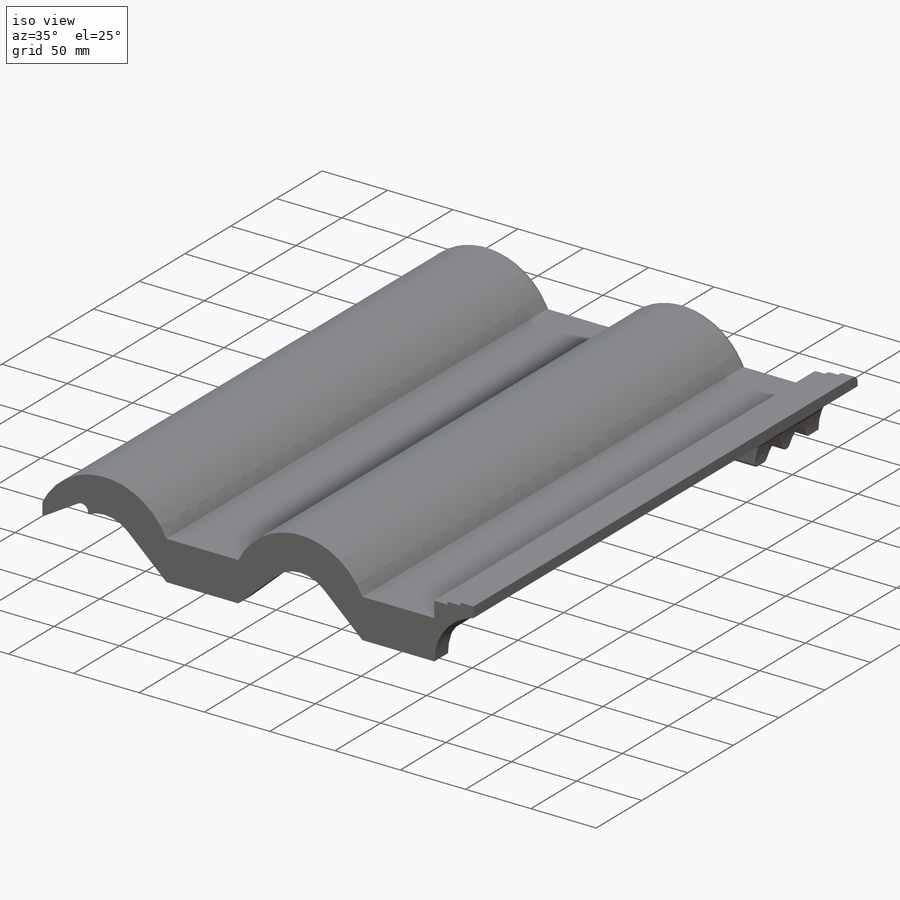
[diagram: iso view]
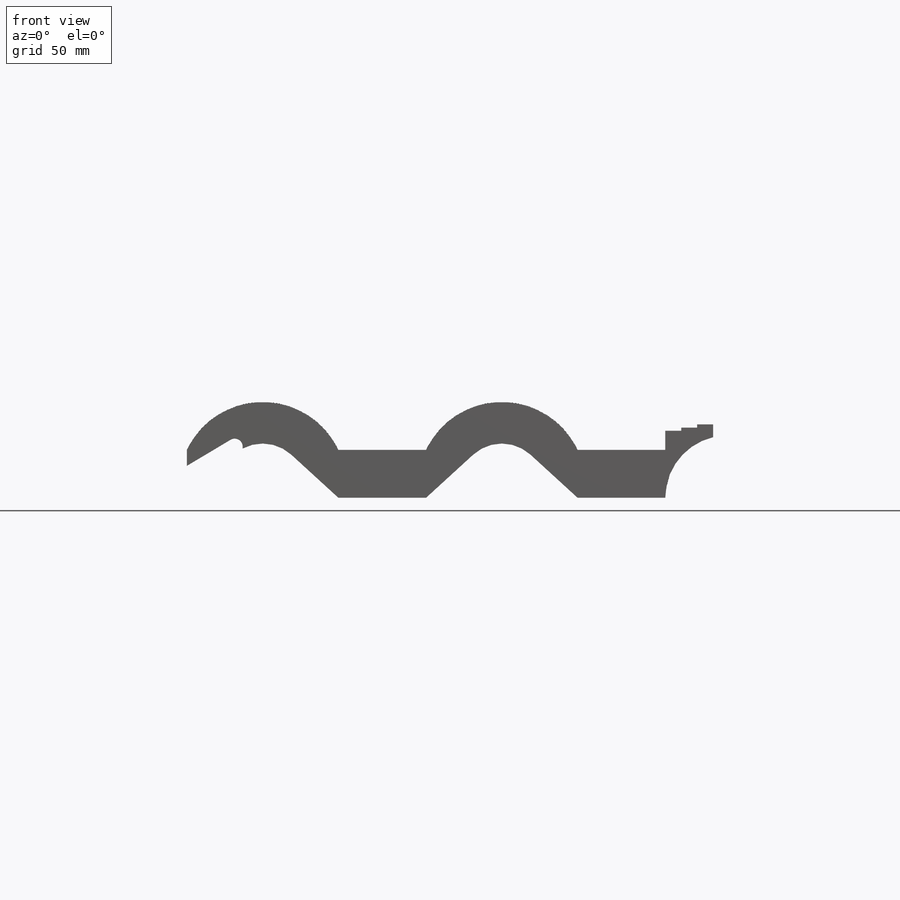
[diagram: front view]
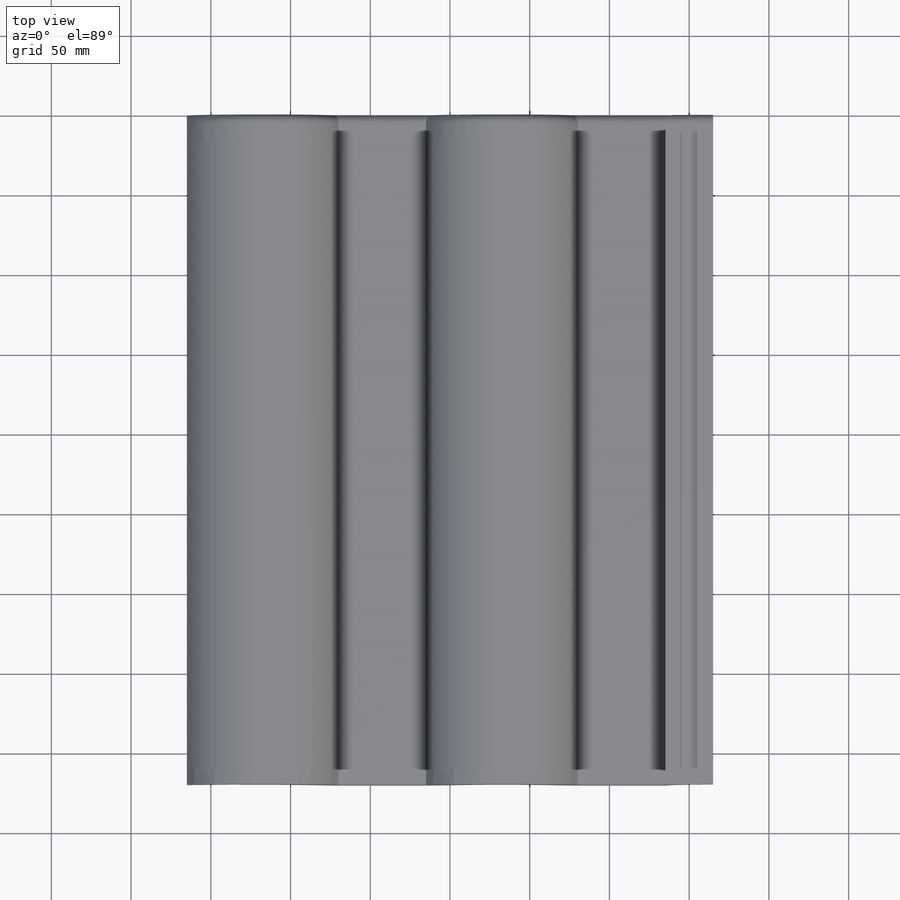
[diagram: top view]
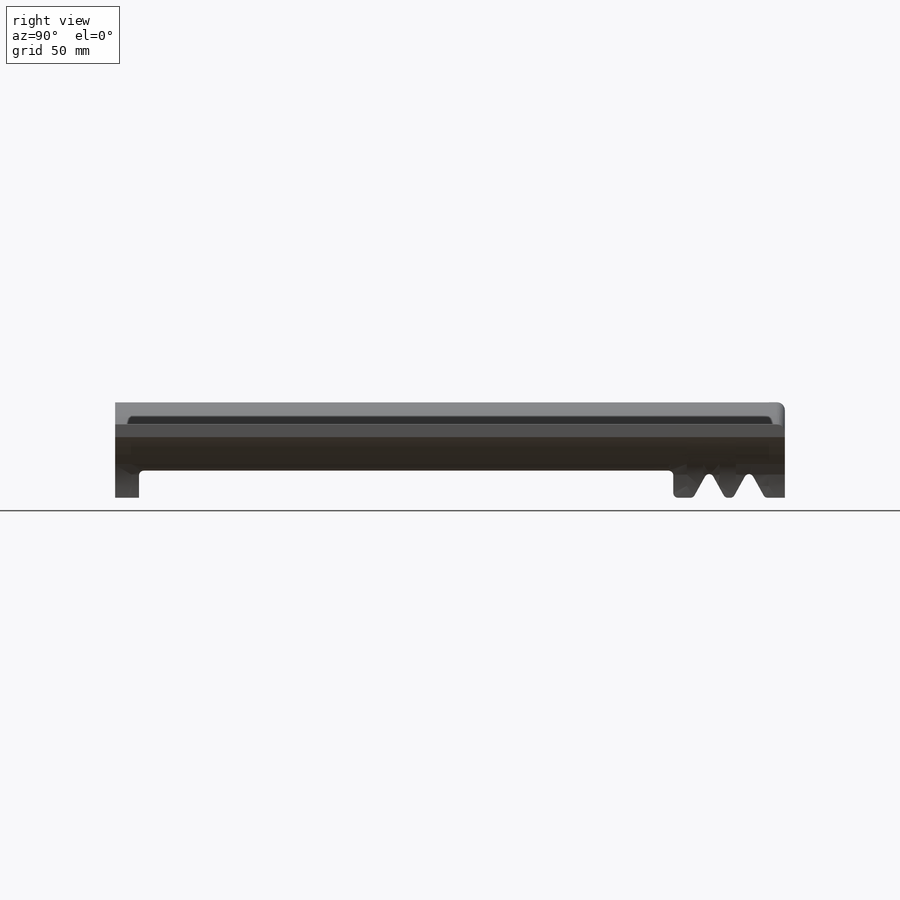
[diagram: right view]
SOLIDWORKS PART (.sldprt)
format: sldprt  version: not decoded by parser v0  size: 1,284,608 bytes
history: native  units: mm
features: plane x4, sketch x4, fillet x4, cut_extrude x3, material x1, extrude x1 (+14 scaffold rows collapsed)
feature tree (31):
  scaffold x14  (default folders/planes/origin — collapsed)
  material  "Materiál <není určen>"
  plane  "Přední rovina"
  plane  "Horní rovina"
  plane  "Pravá rovina"
  sketch  "Skica1"  dims[D1=330.0mm D2=60.0mm]
  extrude  "Vysunout1"  Depth=420mm
  sketch  "Skica2"  dims[c1.D4=~52.604167mm c1.D16=~26.604167mm c1.D2=55.0mm c1.D3=55.0mm c2.D2=55.0mm c2.D3=95.0mm c2.D4=30.0mm c2.D5=12.0mm c2.D6=46.0mm c2.D7=44.0mm c2.D8=10.0mm c2.D10=55.0mm c2.D11=10.0mm c2.D12=35.0mm c2.D13=5.0mm c2.D14=~21.117723mm c3.D13=10.0mm c3.D14=8.0mm c3.D15=27.5mm c3.D16=15.0mm c4.D14=8.0mm c4.D16=95.0mm c4.D1=30.0mm c4.D9=26.0mm]
  cut_extrude  "Vysunout2"  [1 undecoded]
  fillet  "Zaoblit1"  Radius=5mm
  plane  "Rovina1"  Offset=15mm
  sketch  "Skica3"  dims[D1=13.0mm]
  cut_extrude  "Vysunout4"  Depth=335mm
  sketch  "Skica4"  dims[c1.D1=20.0mm c1.D2=14.0mm c1.D3=18.0mm c2.D2=5.0mm c2.D4=12.5mm]
  cut_extrude  "Vysunout5"  Depth=410mm
  fillet  "Zaoblit4"  Radius=5mm
  fillet  "Zaoblit2"  Radius=3mm
  fillet  "Zaoblit3"  Radius=5mm
decode coverage: 11 of 12 modeling features carry decoded parameters
note: ~ marks probable driven/reference dimensions
note: 1 parameter value undecoded
note: suppression state not decoded; provenance and decode notes live in map.json
